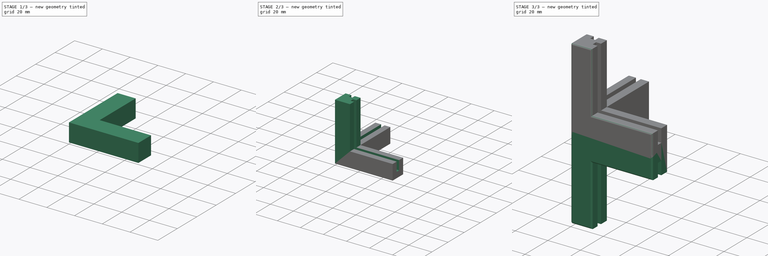
[diagram: build sequence overview — one tinted view per stage of 3, left to right]
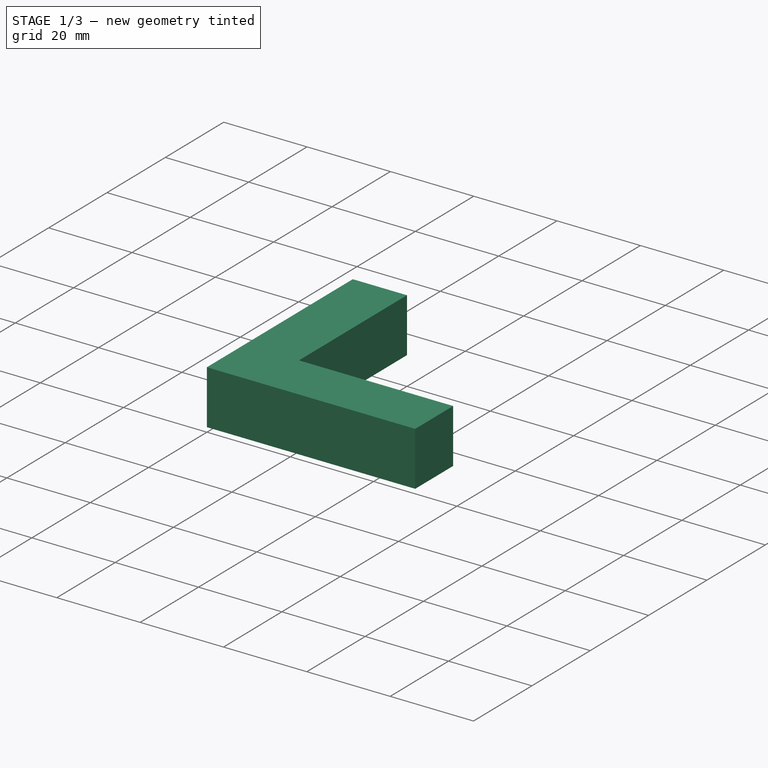
[diagram: stage 1 of 3 — iso view after this stage's code; geometry added in this stage tinted green]
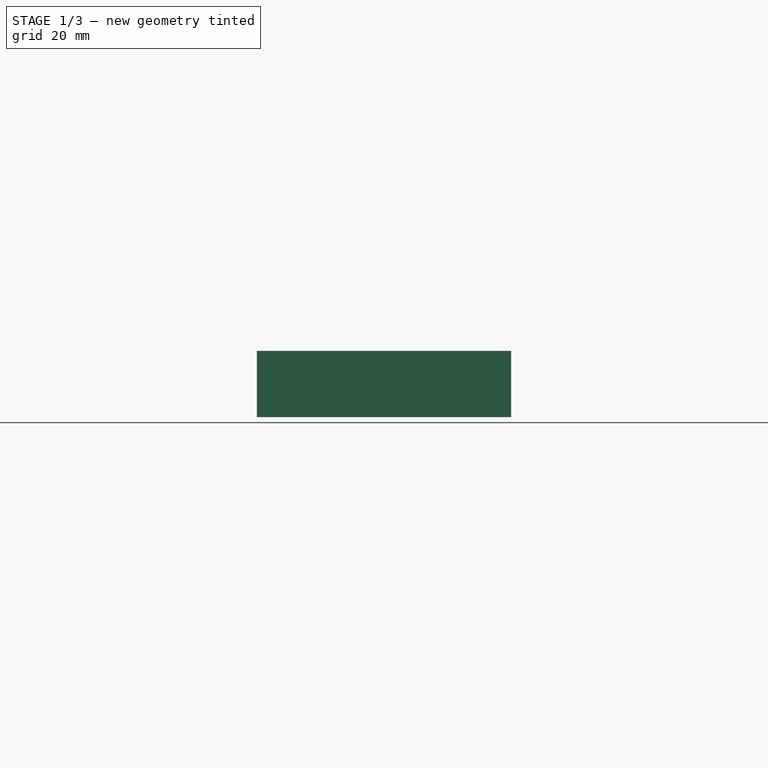
[diagram: stage 1 of 3 — front view after this stage's code; geometry added in this stage tinted green]
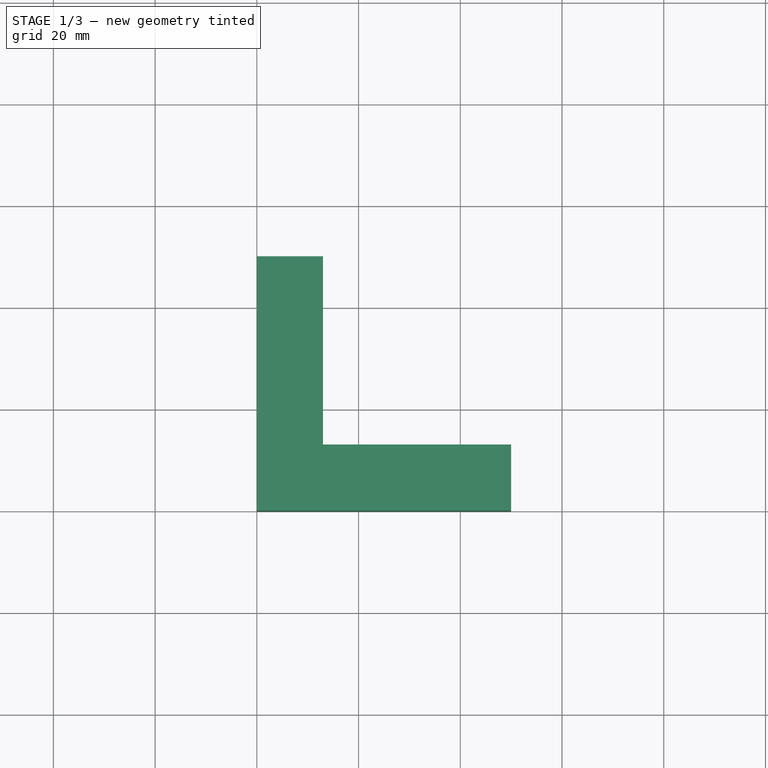
[diagram: stage 1 of 3 — top view after this stage's code; geometry added in this stage tinted green]
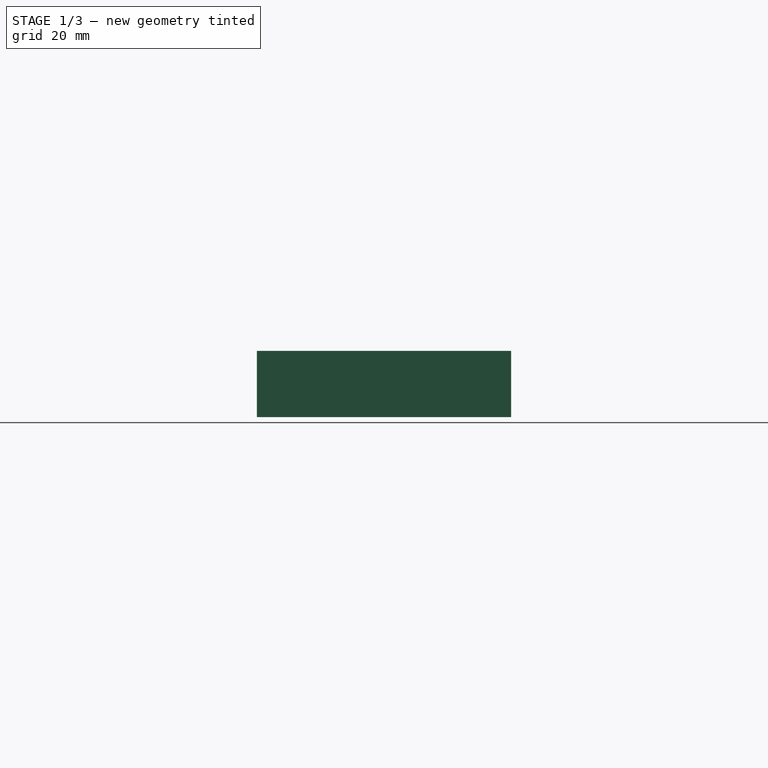
[diagram: stage 1 of 3 — right view after this stage's code; geometry added in this stage tinted green]
FCSTD DOCUMENT  (FreeCAD 1.0R39319 (Git))
Label: corner-top2
License: All rights reserved
LicenseURL: https://en.wikipedia.org/wiki/All_rights_reserved
objects: Sketcher::SketchObject×5, PartDesign::Pad×3, PartDesign::Fillet×2, PartDesign::Body×2, PartDesign::Pocket×1, PartDesign::Mirrored×1, Part::Fuse×1
note: 33 computed .brp shape members not serialized (recipe doc carries the construction recipe); baked Part::Feature solids carry a one-line shape summary decoded from their .brp

FEATURE [Sketcher::SketchObject] Sketch
  ArcFitTolerance = 1e-06
  AttachmentSupport = -> [XY_Plane]
  FullyConstrained = true
  MakeInternals = false
  MapMode = 5
  sketch-geometry (6):
    g0: LineSegment StartX=0 StartY=0 StartZ=0 EndX=50 EndY=0 EndZ=0
    g1: LineSegment StartX=50 StartY=0 StartZ=0 EndX=50 EndY=13 EndZ=0
    g2: LineSegment StartX=50 StartY=13 StartZ=0 EndX=13 EndY=13 EndZ=0
    g3: LineSegment StartX=13 StartY=13 StartZ=0 EndX=13 EndY=50 EndZ=0
    g4: LineSegment StartX=13 StartY=50 StartZ=0 EndX=0 EndY=50 EndZ=0
    g5: LineSegment StartX=0 StartY=50 StartZ=0 EndX=0 EndY=0 EndZ=0
  constraints (17):
    c: Coincident(g-1,g0)
    c: PointOnObject(g0,g-1)
    c: Coincident(g0,g1)
    c: Vertical(g1)
    c: Coincident(g1,g2)
    c: Horizontal(g2)
    c: Coincident(g2,g3)
    c: Vertical(g3)
    c: Coincident(g3,g4)
    c: PointOnObject(g4,g-2)
    c: Horizontal(g4)
    c: Coincident(g4,g5)
    c: Coincident(g5,g0)
    c: DistanceX(g0,g0) = 50
    c: DistanceX(g4,g3) = 13
    c: DistanceY(g0,g4) = 50
    c: DistanceY(g0,g1) = 13
FEATURE [PartDesign::Pad] Pad
  Direction = (0,0,1)
  Length = 13
  Length2 = 10
  Profile = -> Sketch
  ReferenceAxis = -> Sketch [N_Axis]
  Refine = true
  Suppressed = false
  Type = 0
FEATURE [Sketcher::SketchObject] Sketch003
  ArcFitTolerance = 1e-06
  AttachmentSupport = -> [XY_Plane]
  FullyConstrained = true
  MakeInternals = false
  MapMode = 5
FEATURE [PartDesign::Body] Body
  AllowCompound = false
  Group = -> [Sketch,Pad,Sketch001,Pad001,Sketch002,Pocket,Fillet,Mirrored,Sketch003]
  Origin = -> Origin
  Tip = -> Mirrored
FEATURE [Sketcher::SketchObject] Sketch004
  ArcFitTolerance = 1e-06
  AttachmentSupport = -> [XY_Plane001]
  FullyConstrained = true
  MakeInternals = false
  MapMode = 5
  sketch-geometry (6):
    g0: LineSegment StartX=0 StartY=0 StartZ=0 EndX=50 EndY=0 EndZ=0
    g1: LineSegment StartX=50 StartY=0 StartZ=0 EndX=50 EndY=5 EndZ=0
    g2: LineSegment StartX=50 StartY=5 StartZ=0 EndX=5 EndY=5 EndZ=0
    g3: LineSegment StartX=5 StartY=5 StartZ=0 EndX=5 EndY=50 EndZ=0
    g4: LineSegment StartX=5 StartY=50 StartZ=0 EndX=0 EndY=50 EndZ=0
    g5: LineSegment StartX=0 StartY=50 StartZ=0 EndX=0 EndY=0 EndZ=0
  constraints (17):
    c: Coincident(g-1,g0)
    c: PointOnObject(g0,g-1)
    c: Coincident(g0,g1)
    c: Coincident(g1,g2)
    c: Horizontal(g2)
    c: Coincident(g2,g3)
    c: Vertical(g3)
    c: Coincident(g3,g4)
    c: PointOnObject(g4,g-2)
    c: Horizontal(g4)
    c: Coincident(g4,g5)
    c: Coincident(g5,g0)
    c: DistanceX(g0,g0) = 50
    c: DistanceX(g4,g3) = 5
    c: Parallel(g5,g1)
    c: DistanceY(g0,g4) = 50
    c: DistanceY(g0,g1) = 5
FEATURE [PartDesign::Pad] Pad002
  Direction = (0,0,1)
  Length = 5
  Length2 = 10
  Profile = -> Sketch004
  ReferenceAxis = -> Sketch004 [N_Axis]
  Refine = true
  Suppressed = false
  Type = 0
FEATURE [PartDesign::Fillet] Fillet001
  Base = -> Pad002 [Face7,Face3,Face5,Face1,Edge4,Face8,Face6,Edge10,Face2,Face4]
  BaseFeature = -> Pad002
  Radius = 1
  Refine = true
  SupportTransform = false
  Suppressed = false
  UseAllEdges = false
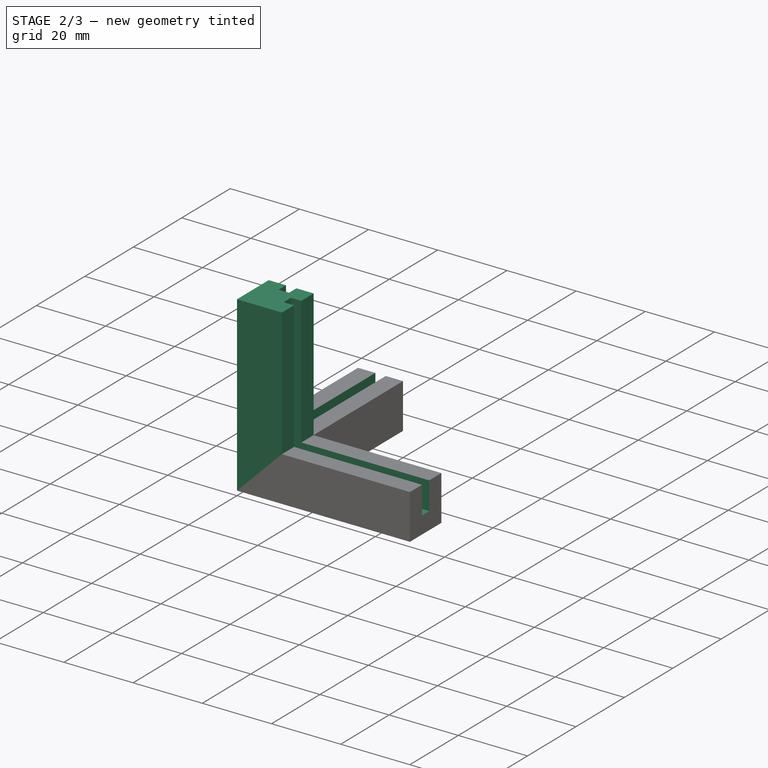
[diagram: stage 2 of 3 — iso view after this stage's code; geometry added in this stage tinted green]
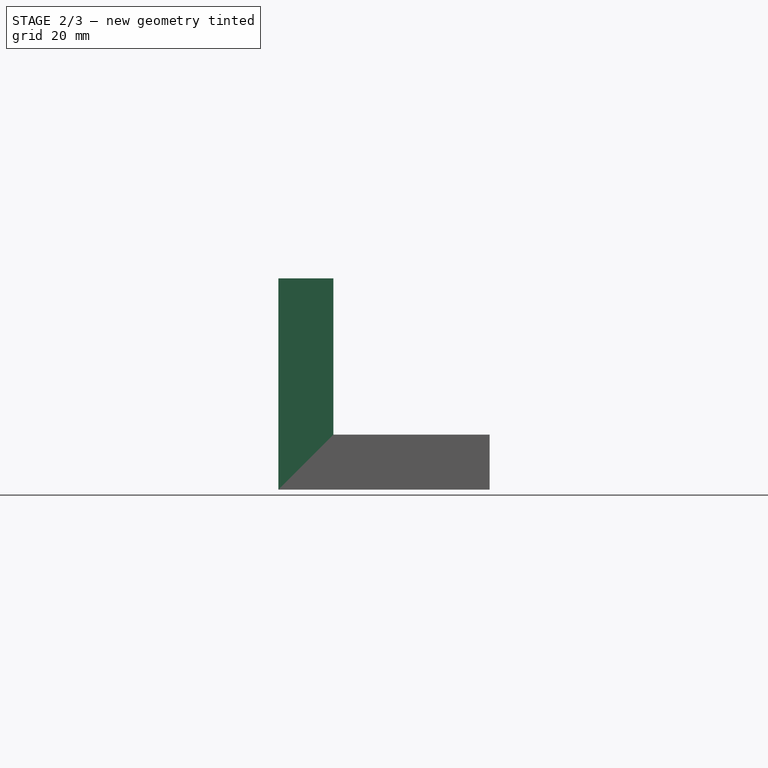
[diagram: stage 2 of 3 — front view after this stage's code; geometry added in this stage tinted green]
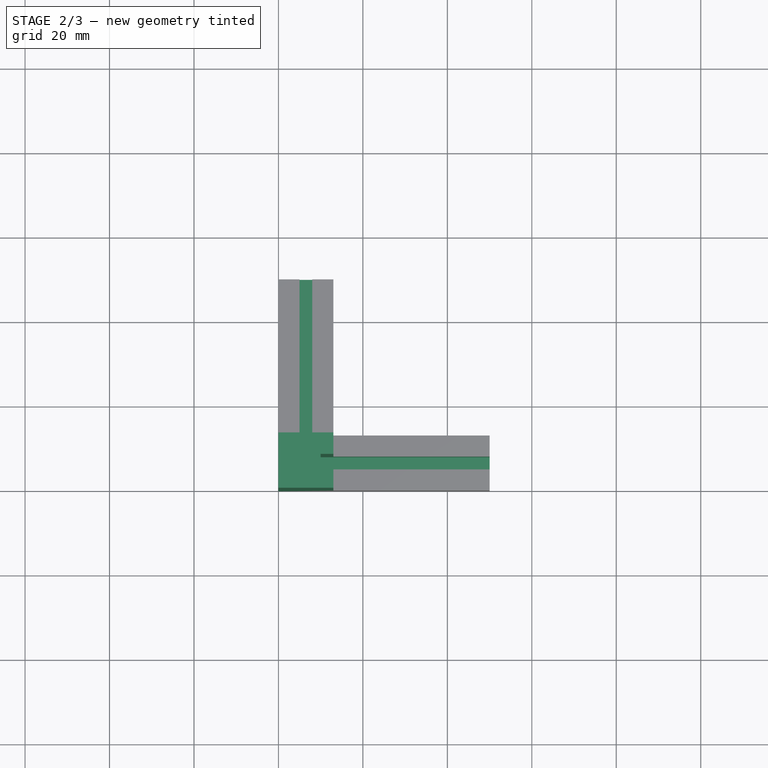
[diagram: stage 2 of 3 — top view after this stage's code; geometry added in this stage tinted green]
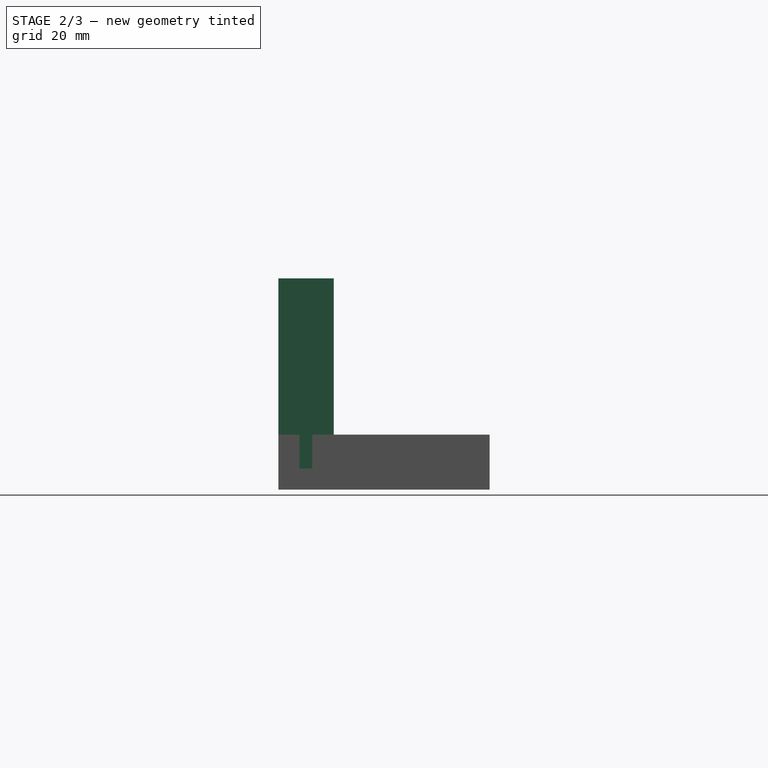
[diagram: stage 2 of 3 — right view after this stage's code; geometry added in this stage tinted green]
FEATURE [Sketcher::SketchObject] Sketch001
  ArcFitTolerance = 1e-06
  AttachmentSupport = -> [XY_Plane]
  FullyConstrained = false
  MakeInternals = false
  MapMode = 5
  sketch-geometry (4):
    g0: LineSegment StartX=0 StartY=0 StartZ=0 EndX=13 EndY=0 EndZ=0
    g1: LineSegment StartX=13 StartY=0 StartZ=0 EndX=13 EndY=13.1058 EndZ=0
    g2: LineSegment StartX=13 StartY=13.1058 StartZ=0 EndX=0 EndY=13.1058 EndZ=0
    g3: LineSegment StartX=0 StartY=13.1058 StartZ=0 EndX=0 EndY=0 EndZ=0
  constraints (10):
    c: Coincident(g0,g1)
    c: Coincident(g1,g2)
    c: Coincident(g2,g3)
    c: Coincident(g3,g0)
    c: Horizontal(g0)
    c: Horizontal(g2)
    c: Vertical(g1)
    c: Vertical(g3)
    c: Coincident(g0,g-1)
    c: DistanceX(g0,g0) = 13
FEATURE [PartDesign::Pad] Pad001
  BaseFeature = -> Pad
  Direction = (0,0,1)
  Length = 50
  Length2 = 10
  Profile = -> Sketch001
  ReferenceAxis = -> Sketch001 [N_Axis]
  Refine = true
  Suppressed = false
  Type = 0
FEATURE [Sketcher::SketchObject] Sketch002
  ArcFitTolerance = 1e-06
  AttachmentSupport = -> [Pad001]
  FullyConstrained = false
  MakeInternals = false
  MapMode = 5
  Placement = pos=(0,0,50) rot=(0,0,1;0rad)
  sketch-geometry (8):
    g0: LineSegment StartX=10 StartY=5 StartZ=0 EndX=80.6085 EndY=5 EndZ=0
    g1: LineSegment StartX=80.6085 StartY=5 StartZ=0 EndX=80.6085 EndY=8 EndZ=0
    g2: LineSegment StartX=80.6085 StartY=8 StartZ=0 EndX=10 EndY=8 EndZ=0
    g3: LineSegment StartX=10 StartY=8 StartZ=0 EndX=10 EndY=5 EndZ=0
    g4: LineSegment StartX=5 StartY=70 StartZ=0 EndX=5 EndY=10 EndZ=0
    g5: LineSegment StartX=5 StartY=10 StartZ=0 EndX=8 EndY=10 EndZ=0
    g6: LineSegment StartX=8 StartY=10 StartZ=0 EndX=8 EndY=70 EndZ=0
    g7: LineSegment StartX=8 StartY=70 StartZ=0 EndX=5 EndY=70 EndZ=0
  constraints (23):
    c: Coincident(g0,g1)
    c: Coincident(g1,g2)
    c: Coincident(g2,g3)
    c: Coincident(g3,g0)
    c: Horizontal(g0)
    c: Horizontal(g2)
    c: Vertical(g1)
    c: Vertical(g3)
    c: Coincident(g4,g5)
    c: Coincident(g5,g6)
    c: Coincident(g6,g7)
    c: Coincident(g7,g4)
    c: Vertical(g4)
    c: Vertical(g6)
    c: Horizontal(g5)
    c: Horizontal(g7)
    c: DistanceX(g-1,g0) = 10
    c: DistanceY(g-1,g0) = 5
    c: DistanceY(g0,g1) = 3
    c: DistanceY(g5,g6) = 60
    c: DistanceY(g-1,g5) = 10
    c: DistanceX(g-1,g4) = 5
    c: DistanceX(g4,g6) = 3
FEATURE [PartDesign::Pocket] Pocket
  BaseFeature = -> Pad001
  Direction = (0,0,-1)
  Length = 45
  Length2 = 5
  Profile = -> Sketch002
  ReferenceAxis = -> Sketch002 [N_Axis]
  Refine = true
  Suppressed = false
  Type = 0
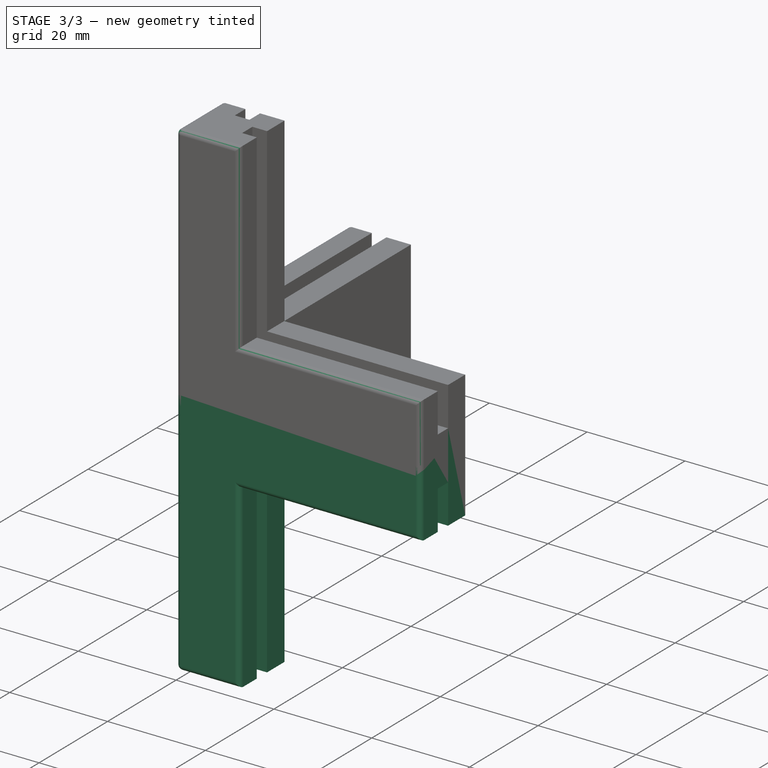
[diagram: stage 3 of 3 — iso view after this stage's code; geometry added in this stage tinted green]
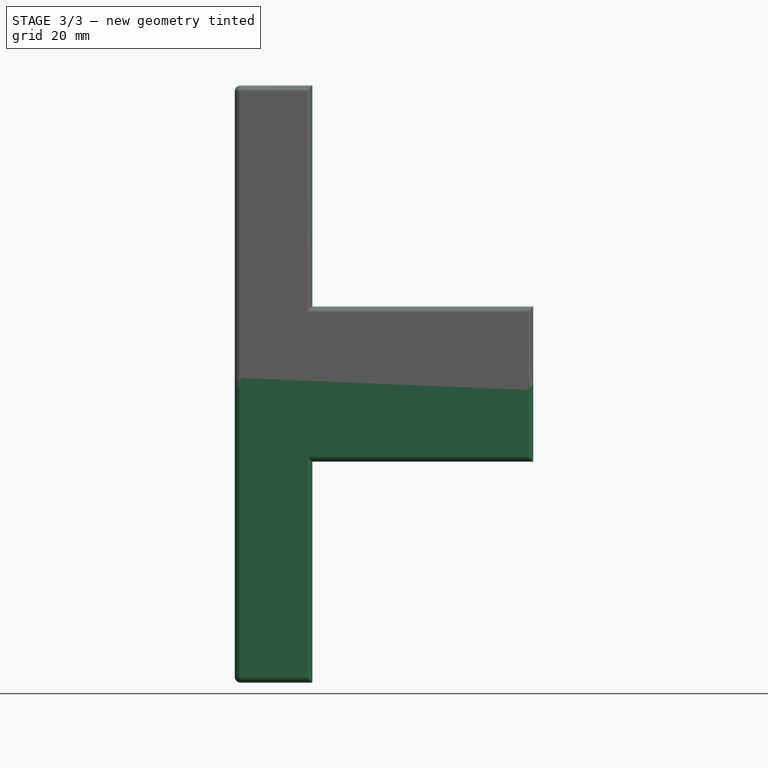
[diagram: stage 3 of 3 — front view after this stage's code; geometry added in this stage tinted green]
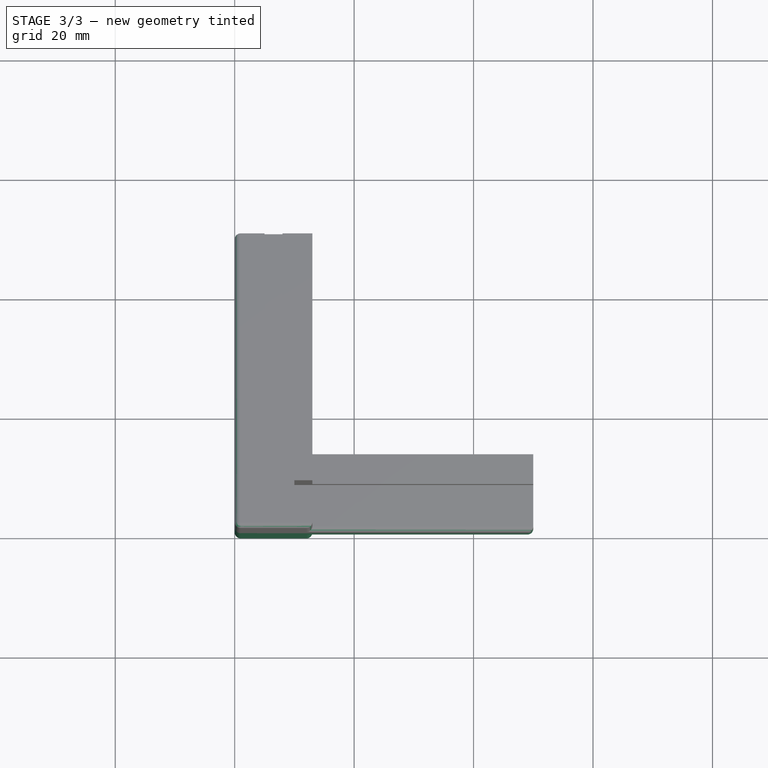
[diagram: stage 3 of 3 — top view after this stage's code; geometry added in this stage tinted green]
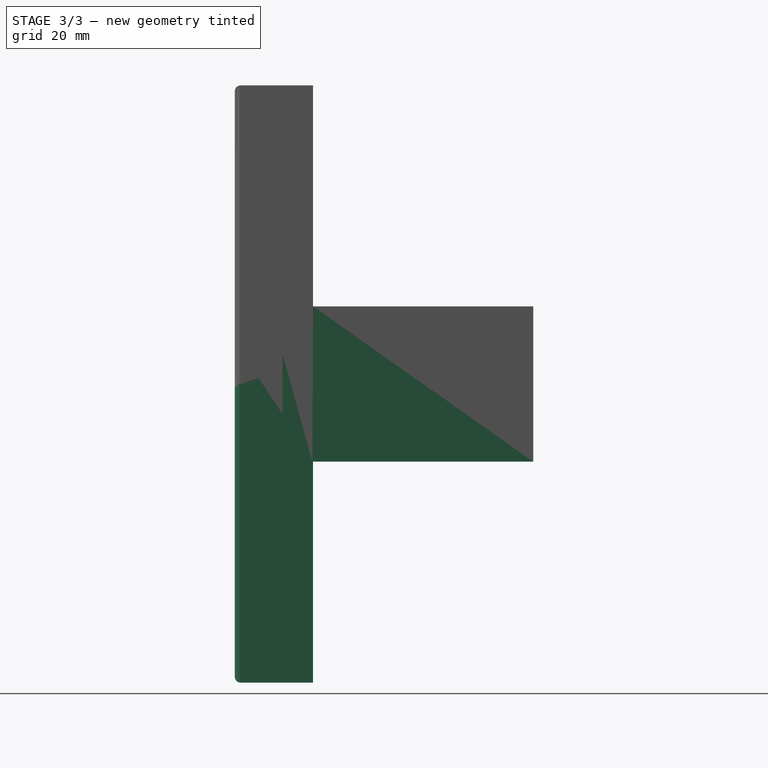
[diagram: stage 3 of 3 — right view after this stage's code; geometry added in this stage tinted green]
FEATURE [PartDesign::Fillet] Fillet
  Base = -> Pocket [Face9,Face10]
  BaseFeature = -> Pocket
  Radius = 1
  Refine = true
  SupportTransform = false
  Suppressed = false
  UseAllEdges = false
FEATURE [PartDesign::Mirrored] Mirrored
  BaseFeature = -> Fillet
  MirrorPlane = -> XY_Plane
  Refine = true
  Suppressed = false
  TransformMode = 1
FEATURE [PartDesign::Body] Body001
  AllowCompound = false
  Group = -> [Sketch004,Pad002,Fillet001]
  Origin = -> Origin001
  Placement = pos=(0,0,-3) rot=(0,0,1;0rad)
  Tip = -> Fillet001
FEATURE [Part::Fuse] Fusion
  Base = -> Body
  Tool = -> Body001
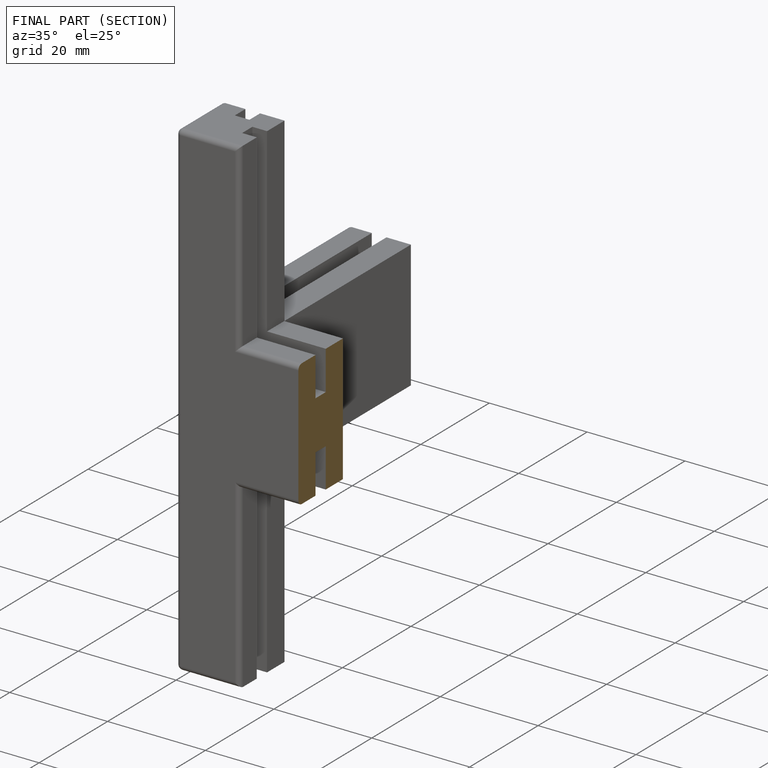
[diagram: finished part — half-section view (interior)]
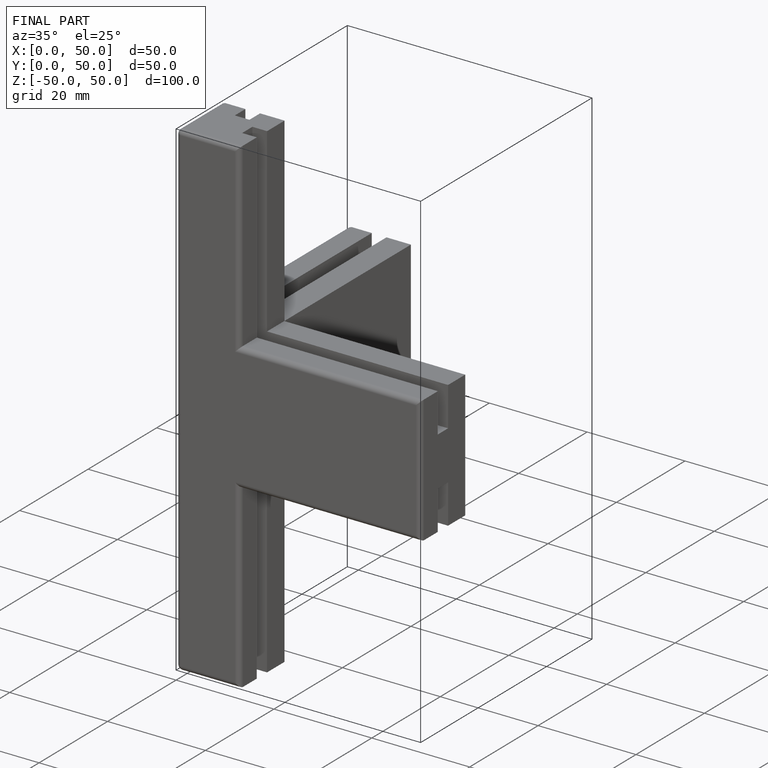
[diagram: finished part — iso view with bounding-box wireframe]
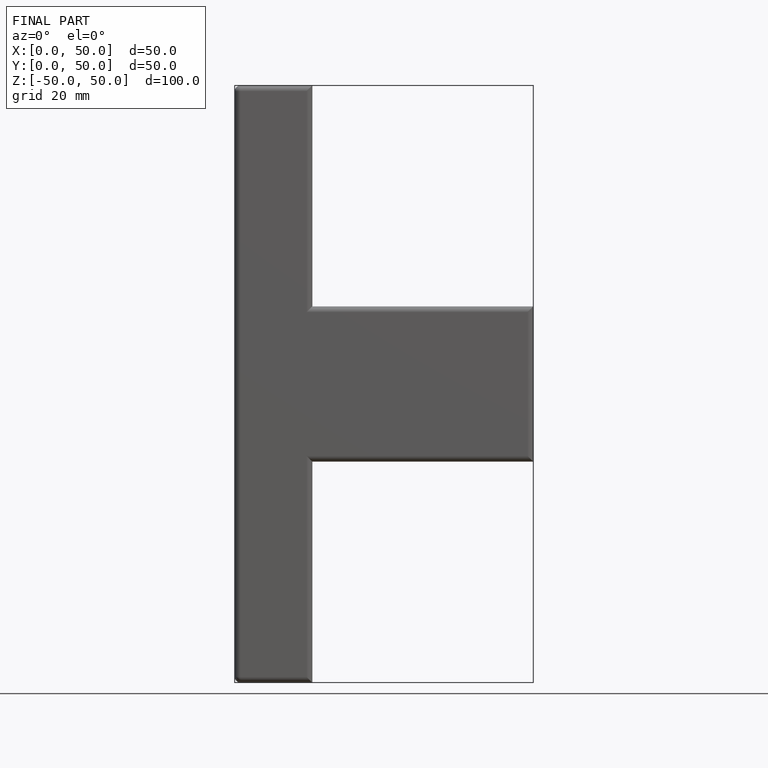
[diagram: finished part — front view with bounding-box wireframe]
